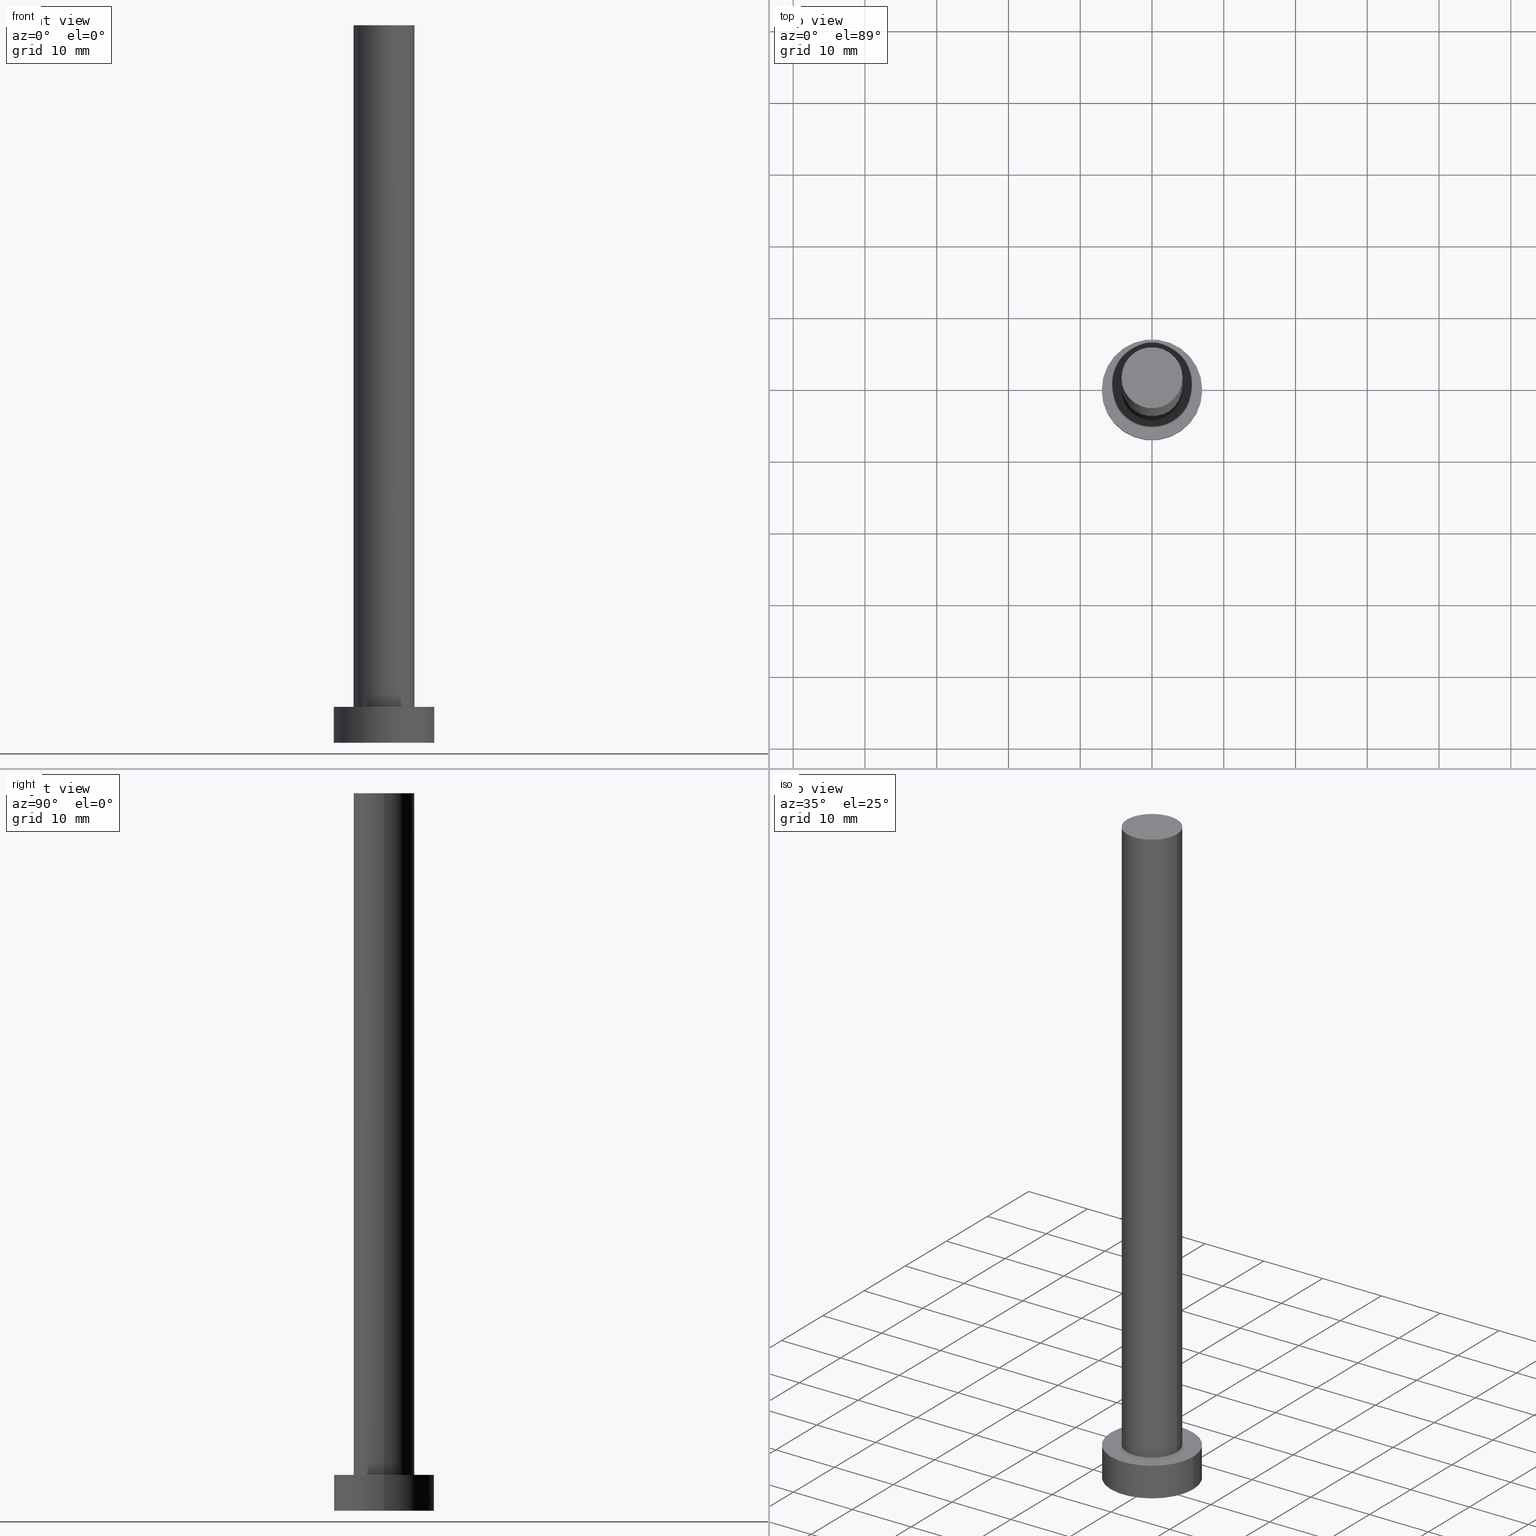
[diagram: canonical four-view strip — front | top / right | iso, engineering-drawing reading convention]
A machine part, canonical four-view strip (front | top / right | iso — engineering-drawing reading convention). The complete STEP part file that produces these views, byte-faithful:
ISO-10303-21;
HEADER;
FILE_DESCRIPTION (( 'STEP AP203' ),
    '1' );
FILE_NAME ('f365.STEP',
    '2023-02-12T11:11:16',
    ( '' ),
    ( '' ),
    'SwSTEP 2.0',
    'SolidWorks 2019',
    '' );
FILE_SCHEMA (( 'CONFIG_CONTROL_DESIGN' ));
ENDSEC;

DATA;
#1 = LINE ( 'NONE', #126, #28 ) ;
#2 = ORIENTED_EDGE ( 'NONE', *, *, #116, .F. ) ;
#3 = AXIS2_PLACEMENT_3D ( 'NONE', #108, #89, #244 ) ;
#4 = APPROVAL_PERSON_ORGANIZATION ( #32, #46, #212 ) ;
#5 = CARTESIAN_POINT ( 'NONE',  ( -4.250000000000000000, 0.000000000000000000, 100.0000000000000000 ) ) ;
#6 = ORIENTED_EDGE ( 'NONE', *, *, #142, .T. ) ;
#7 = PERSON_AND_ORGANIZATION_ROLE ( 'design_owner' ) ;
#8 = DIRECTION ( 'NONE',  ( 0.000000000000000000, 0.000000000000000000, 1.000000000000000000 ) ) ;
#9 = SECURITY_CLASSIFICATION_LEVEL ( 'unclassified' ) ;
#10 = LINE ( 'NONE', #169, #60 ) ;
#11 = APPROVAL_STATUS ( 'not_yet_approved' ) ;
#12 = CARTESIAN_POINT ( 'NONE',  ( 7.000000000000000000, 8.572527594031473190E-16, 0.000000000000000000 ) ) ;
#13 = DATE_AND_TIME ( #74, #94 ) ;
#14 = EDGE_CURVE ( 'NONE', #255, #229, #161, .T. ) ;
#15 = CLOSED_SHELL ( 'NONE', ( #221, #56, #201, #236, #35, #146, #170 ) ) ;
#16 = CIRCLE ( 'NONE', #54, 7.000000000000000000 ) ;
#17 = EDGE_CURVE ( 'NONE', #189, #52, #10, .T. ) ;
#18 = CC_DESIGN_PERSON_AND_ORGANIZATION_ASSIGNMENT ( #69, #7, ( #130 ) ) ;
#19 =( NAMED_UNIT ( * ) SI_UNIT ( $, .STERADIAN. ) SOLID_ANGLE_UNIT ( ) );
#20 = EDGE_LOOP ( 'NONE', ( #218, #133, #178, #80 ) ) ;
#21 = AXIS2_PLACEMENT_3D ( 'NONE', #97, #123, #254 ) ;
#22 = CYLINDRICAL_SURFACE ( 'NONE', #214, 7.000000000000000000 ) ;
#23 = ORIENTED_EDGE ( 'NONE', *, *, #215, .T. ) ;
#24 = DIRECTION ( 'NONE',  ( 0.000000000000000000, 0.000000000000000000, 1.000000000000000000 ) ) ;
#25 = FACE_OUTER_BOUND ( 'NONE', #65, .T. ) ;
#26 = CARTESIAN_POINT ( 'NONE',  ( 0.000000000000000000, 0.000000000000000000, 100.0000000000000000 ) ) ;
#27 = ORIENTED_EDGE ( 'NONE', *, *, #59, .T. ) ;
#28 = VECTOR ( 'NONE', #84, 1000.000000000000000 ) ;
#29 = DIRECTION ( 'NONE',  ( 1.000000000000000000, 0.000000000000000000, 0.000000000000000000 ) ) ;
#30 = PERSON_AND_ORGANIZATION_ROLE ( 'design_supplier' ) ;
#31 = CARTESIAN_POINT ( 'NONE',  ( 0.000000000000000000, 0.000000000000000000, 100.0000000000000000 ) ) ;
#32 = PERSON_AND_ORGANIZATION ( #198, #245 ) ;
#33 = EDGE_LOOP ( 'NONE', ( #175, #2 ) ) ;
#34 = CC_DESIGN_APPROVAL ( #132, ( #231 ) ) ;
#35 = ADVANCED_FACE ( 'NONE', ( #45 ), #230, .F. ) ;
#36 = PERSON_AND_ORGANIZATION_ROLE ( 'creator' ) ;
#37 = CC_DESIGN_APPROVAL ( #143, ( #62 ) ) ;
#38 = VERTEX_POINT ( 'NONE', #12 ) ;
#39 = DIRECTION ( 'NONE',  ( -0.000000000000000000, -0.000000000000000000, -1.000000000000000000 ) ) ;
#40 = ORIENTED_EDGE ( 'NONE', *, *, #116, .T. ) ;
#41 = AXIS2_PLACEMENT_3D ( 'NONE', #239, #200, #64 ) ;
#42 = DIRECTION ( 'NONE',  ( 0.000000000000000000, 0.000000000000000000, 1.000000000000000000 ) ) ;
#43 = CARTESIAN_POINT ( 'NONE',  ( 4.250000000000000000, 5.204748896376250699E-16, 100.0000000000000000 ) ) ;
#44 = DIRECTION ( 'NONE',  ( 1.000000000000000000, 0.000000000000000000, -0.000000000000000000 ) ) ;
#45 = FACE_OUTER_BOUND ( 'NONE', #152, .T. ) ;
#46 = APPROVAL ( #191, 'NEUR�EN�' ) ;
#47 = FACE_OUTER_BOUND ( 'NONE', #207, .T. ) ;
#48 = CARTESIAN_POINT ( 'NONE',  ( 0.000000000000000000, 0.000000000000000000, 5.000000000000000000 ) ) ;
#49 = COORDINATED_UNIVERSAL_TIME_OFFSET ( 1, 0, .AHEAD. ) ;
#50 = DIRECTION ( 'NONE',  ( 1.000000000000000000, 0.000000000000000000, 0.000000000000000000 ) ) ;
#51 = MECHANICAL_CONTEXT ( 'NONE', #95, 'mechanical' ) ;
#52 = VERTEX_POINT ( 'NONE', #209 ) ;
#53 = CARTESIAN_POINT ( 'NONE',  ( 0.000000000000000000, 0.000000000000000000, 5.000000000000000000 ) ) ;
#54 = AXIS2_PLACEMENT_3D ( 'NONE', #216, #183, #102 ) ;
#55 = CC_DESIGN_PERSON_AND_ORGANIZATION_ASSIGNMENT ( #206, #30, ( #62 ) ) ;
#56 = ADVANCED_FACE ( 'NONE', ( #173 ), #150, .T. ) ;
#57 = AXIS2_PLACEMENT_3D ( 'NONE', #203, #241, #225 ) ;
#58 = DIRECTION ( 'NONE',  ( -0.000000000000000000, -0.000000000000000000, -1.000000000000000000 ) ) ;
#59 = EDGE_CURVE ( 'NONE', #101, #52, #224, .T. ) ;
#60 = VECTOR ( 'NONE', #223, 1000.000000000000000 ) ;
#61 = PLANE ( 'NONE',  #68 ) ;
#62 = PRODUCT_DEFINITION_FORMATION_WITH_SPECIFIED_SOURCE ( 'LIBOVOLN�', '', #130, .NOT_KNOWN. ) ;
#63 = CARTESIAN_POINT ( 'NONE',  ( -7.000000000000000000, 0.000000000000000000, 0.000000000000000000 ) ) ;
#64 = DIRECTION ( 'NONE',  ( 1.000000000000000000, 0.000000000000000000, 0.000000000000000000 ) ) ;
#65 = EDGE_LOOP ( 'NONE', ( #70, #85, #164, #6 ) ) ;
#66 = DIRECTION ( 'NONE',  ( 1.000000000000000000, 0.000000000000000000, 0.000000000000000000 ) ) ;
#67 = EDGE_LOOP ( 'NONE', ( #227, #120 ) ) ;
#68 = AXIS2_PLACEMENT_3D ( 'NONE', #199, #163, #168 ) ;
#69 = PERSON_AND_ORGANIZATION ( #198, #245 ) ;
#70 = ORIENTED_EDGE ( 'NONE', *, *, #157, .F. ) ;
#71 = DIRECTION ( 'NONE',  ( -0.000000000000000000, -0.000000000000000000, -1.000000000000000000 ) ) ;
#72 = DATE_AND_TIME ( #172, #195 ) ;
#73 = CIRCLE ( 'NONE', #21, 4.250000000000000000 ) ;
#74 = CALENDAR_DATE ( 2023, 12, 2 ) ;
#75 = VECTOR ( 'NONE', #240, 1000.000000000000000 ) ;
#76 = MANIFOLD_SOLID_BREP ( 'P�idat vysunut�m3', #15 ) ;
#77 = APPLICATION_CONTEXT ( 'configuration controlled 3d designs of mechanical parts and assemblies' ) ;
#78 = ADVANCED_BREP_SHAPE_REPRESENTATION ( 'f365', ( #76, #166 ), #252 ) ;
#79 = FACE_OUTER_BOUND ( 'NONE', #67, .T. ) ;
#80 = ORIENTED_EDGE ( 'NONE', *, *, #103, .F. ) ;
#81 = DIRECTION ( 'NONE',  ( -1.000000000000000000, 0.000000000000000000, 0.000000000000000000 ) ) ;
#82 = PLANE ( 'NONE',  #190 ) ;
#83 = LOCAL_TIME ( 12, 11, 16.00000000000000000, #208 ) ;
#84 = DIRECTION ( 'NONE',  ( -0.000000000000000000, -0.000000000000000000, -1.000000000000000000 ) ) ;
#85 = ORIENTED_EDGE ( 'NONE', *, *, #14, .F. ) ;
#86 = DIRECTION ( 'NONE',  ( 1.000000000000000000, 0.000000000000000000, 0.000000000000000000 ) ) ;
#87 = CIRCLE ( 'NONE', #104, 4.250000000000000000 ) ;
#88 = CALENDAR_DATE ( 2023, 12, 2 ) ;
#89 = DIRECTION ( 'NONE',  ( 0.000000000000000000, 0.000000000000000000, 1.000000000000000000 ) ) ;
#90 = COORDINATED_UNIVERSAL_TIME_OFFSET ( 1, 0, .AHEAD. ) ;
#91 = LINE ( 'NONE', #250, #141 ) ;
#92 = DATE_TIME_ROLE ( 'classification_date' ) ;
#93 = CC_DESIGN_PERSON_AND_ORGANIZATION_ASSIGNMENT ( #114, #193, ( #62 ) ) ;
#94 = LOCAL_TIME ( 12, 11, 16.00000000000000000, #49 ) ;
#95 = APPLICATION_CONTEXT ( 'configuration controlled 3d designs of mechanical parts and assemblies' ) ;
#96 = EDGE_CURVE ( 'NONE', #38, #171, #213, .T. ) ;
#97 = CARTESIAN_POINT ( 'NONE',  ( 0.000000000000000000, 0.000000000000000000, 5.000000000000000000 ) ) ;
#98 = CIRCLE ( 'NONE', #243, 4.250000000000000000 ) ;
#99 = ORIENTED_EDGE ( 'NONE', *, *, #194, .F. ) ;
#100 = EDGE_CURVE ( 'NONE', #125, #189, #98, .T. ) ;
#101 = VERTEX_POINT ( 'NONE', #113 ) ;
#102 = DIRECTION ( 'NONE',  ( 1.000000000000000000, 0.000000000000000000, 0.000000000000000000 ) ) ;
#103 = EDGE_CURVE ( 'NONE', #255, #171, #91, .T. ) ;
#104 = AXIS2_PLACEMENT_3D ( 'NONE', #177, #42, #184 ) ;
#105 = CARTESIAN_POINT ( 'NONE',  ( 0.000000000000000000, 0.000000000000000000, 100.0000000000000000 ) ) ;
#106 = ORIENTED_EDGE ( 'NONE', *, *, #194, .T. ) ;
#107 = APPROVAL_STATUS ( 'not_yet_approved' ) ;
#108 = CARTESIAN_POINT ( 'NONE',  ( 0.000000000000000000, 0.000000000000000000, 0.000000000000000000 ) ) ;
#109 = APPLICATION_PROTOCOL_DEFINITION ( 'international standard', 'config_control_design', 1994, #77 ) ;
#110 = ORIENTED_EDGE ( 'NONE', *, *, #100, .F. ) ;
#111 = CC_DESIGN_PERSON_AND_ORGANIZATION_ASSIGNMENT ( #160, #249, ( #238 ) ) ;
#112 = AXIS2_PLACEMENT_3D ( 'NONE', #105, #124, #220 ) ;
#113 = CARTESIAN_POINT ( 'NONE',  ( -4.250000000000000000, 0.000000000000000000, 5.000000000000000000 ) ) ;
#114 = PERSON_AND_ORGANIZATION ( #198, #245 ) ;
#115 = APPROVAL_ROLE ( '' ) ;
#116 = EDGE_CURVE ( 'NONE', #52, #101, #73, .T. ) ;
#117 = AXIS2_PLACEMENT_3D ( 'NONE', #53, #192, #187 ) ;
#118 = LOCAL_TIME ( 12, 11, 16.00000000000000000, #247 ) ;
#119 = CC_DESIGN_PERSON_AND_ORGANIZATION_ASSIGNMENT ( #226, #36, ( #231 ) ) ;
#120 = ORIENTED_EDGE ( 'NONE', *, *, #139, .T. ) ;
#121 = CARTESIAN_POINT ( 'NONE',  ( 7.000000000000000000, 8.572527594031473190E-16, 5.000000000000000000 ) ) ;
#122 = AXIS2_PLACEMENT_3D ( 'NONE', #26, #39, #81 ) ;
#123 = DIRECTION ( 'NONE',  ( 0.000000000000000000, 0.000000000000000000, 1.000000000000000000 ) ) ;
#124 = DIRECTION ( 'NONE',  ( -0.000000000000000000, -0.000000000000000000, -1.000000000000000000 ) ) ;
#125 = VERTEX_POINT ( 'NONE', #5 ) ;
#126 = CARTESIAN_POINT ( 'NONE',  ( 7.000000000000000000, 8.572527594031473190E-16, 5.000000000000000000 ) ) ;
#127 = ORIENTED_EDGE ( 'NONE', *, *, #17, .F. ) ;
#128 = CC_DESIGN_APPROVAL ( #46, ( #238 ) ) ;
#129 = CARTESIAN_POINT ( 'NONE',  ( 0.000000000000000000, 0.000000000000000000, 0.000000000000000000 ) ) ;
#130 = PRODUCT ( 'f365', 'f365', '', ( #51 ) ) ;
#131 = APPROVAL_DATE_TIME ( #13, #143 ) ;
#132 = APPROVAL ( #11, 'NEUR�EN�' ) ;
#133 = ORIENTED_EDGE ( 'NONE', *, *, #157, .T. ) ;
#134 = UNCERTAINTY_MEASURE_WITH_UNIT (LENGTH_MEASURE( 1.000000000000000082E-05 ), #235, 'distance_accuracy_value', 'NONE');
#135 = CARTESIAN_POINT ( 'NONE',  ( 0.000000000000000000, 0.000000000000000000, 0.000000000000000000 ) ) ;
#136 = DIRECTION ( 'NONE',  ( 0.000000000000000000, 0.000000000000000000, 1.000000000000000000 ) ) ;
#137 = AXIS2_PLACEMENT_3D ( 'NONE', #129, #154, #29 ) ;
#138 = PERSON_AND_ORGANIZATION ( #198, #245 ) ;
#139 = EDGE_CURVE ( 'NONE', #189, #125, #87, .T. ) ;
#140 = DATE_AND_TIME ( #174, #162 ) ;
#141 = VECTOR ( 'NONE', #71, 1000.000000000000000 ) ;
#142 = EDGE_CURVE ( 'NONE', #171, #38, #233, .T. ) ;
#143 = APPROVAL ( #107, 'NEUR�EN�' ) ;
#144 = LINE ( 'NONE', #202, #75 ) ;
#145 = APPROVAL_PERSON_ORGANIZATION ( #138, #132, #115 ) ;
#146 = ADVANCED_FACE ( 'NONE', ( #147 ), #181, .T. ) ;
#147 = FACE_OUTER_BOUND ( 'NONE', #205, .T. ) ;
#148 = CYLINDRICAL_SURFACE ( 'NONE', #122, 4.250000000000000000 ) ;
#149 = PRODUCT_DEFINITION_SHAPE ( 'NONE', 'NONE',  #231 ) ;
#150 = CYLINDRICAL_SURFACE ( 'NONE', #57, 7.000000000000000000 ) ;
#151 = APPROVAL_DATE_TIME ( #140, #132 ) ;
#152 = EDGE_LOOP ( 'NONE', ( #182, #248 ) ) ;
#153 = DATE_AND_TIME ( #176, #118 ) ;
#154 = DIRECTION ( 'NONE',  ( 0.000000000000000000, 0.000000000000000000, 1.000000000000000000 ) ) ;
#155 = APPROVAL_DATE_TIME ( #153, #46 ) ;
#156 = ORIENTED_EDGE ( 'NONE', *, *, #17, .T. ) ;
#157 = EDGE_CURVE ( 'NONE', #229, #38, #1, .T. ) ;
#158 = AXIS2_PLACEMENT_3D ( 'NONE', #48, #136, #50 ) ;
#159 = DESIGN_CONTEXT ( 'detailed design', #77, 'design' ) ;
#160 = PERSON_AND_ORGANIZATION ( #198, #245 ) ;
#161 = CIRCLE ( 'NONE', #117, 7.000000000000000000 ) ;
#162 = LOCAL_TIME ( 12, 11, 16.00000000000000000, #211 ) ;
#163 = DIRECTION ( 'NONE',  ( 0.000000000000000000, 0.000000000000000000, 1.000000000000000000 ) ) ;
#164 = ORIENTED_EDGE ( 'NONE', *, *, #103, .T. ) ;
#165 = CARTESIAN_POINT ( 'NONE',  ( -7.000000000000000000, 0.000000000000000000, 5.000000000000000000 ) ) ;
#166 = AXIS2_PLACEMENT_3D ( 'NONE', #135, #204, #66 ) ;
#167 = CARTESIAN_POINT ( 'NONE',  ( 0.000000000000000000, 0.000000000000000000, 5.000000000000000000 ) ) ;
#168 = DIRECTION ( 'NONE',  ( 1.000000000000000000, 0.000000000000000000, -0.000000000000000000 ) ) ;
#169 = CARTESIAN_POINT ( 'NONE',  ( 4.250000000000000000, 5.204748896376250699E-16, 100.0000000000000000 ) ) ;
#170 = ADVANCED_FACE ( 'NONE', ( #79 ), #61, .T. ) ;
#171 = VERTEX_POINT ( 'NONE', #63 ) ;
#172 = CALENDAR_DATE ( 2023, 12, 2 ) ;
#173 = FACE_OUTER_BOUND ( 'NONE', #20, .T. ) ;
#174 = CALENDAR_DATE ( 2023, 12, 2 ) ;
#175 = ORIENTED_EDGE ( 'NONE', *, *, #59, .F. ) ;
#176 = CALENDAR_DATE ( 2023, 12, 2 ) ;
#177 = CARTESIAN_POINT ( 'NONE',  ( 0.000000000000000000, 0.000000000000000000, 100.0000000000000000 ) ) ;
#178 = ORIENTED_EDGE ( 'NONE', *, *, #96, .T. ) ;
#179 =( NAMED_UNIT ( * ) PLANE_ANGLE_UNIT ( ) SI_UNIT ( $, .RADIAN. ) );
#180 = ORIENTED_EDGE ( 'NONE', *, *, #14, .T. ) ;
#181 = CYLINDRICAL_SURFACE ( 'NONE', #112, 4.250000000000000000 ) ;
#182 = ORIENTED_EDGE ( 'NONE', *, *, #142, .F. ) ;
#183 = DIRECTION ( 'NONE',  ( 0.000000000000000000, 0.000000000000000000, 1.000000000000000000 ) ) ;
#184 = DIRECTION ( 'NONE',  ( 1.000000000000000000, 0.000000000000000000, 0.000000000000000000 ) ) ;
#185 = CC_DESIGN_DATE_AND_TIME_ASSIGNMENT ( #72, #251, ( #231 ) ) ;
#186 = EDGE_LOOP ( 'NONE', ( #180, #23 ) ) ;
#187 = DIRECTION ( 'NONE',  ( 1.000000000000000000, 0.000000000000000000, 0.000000000000000000 ) ) ;
#188 = PERSON_AND_ORGANIZATION ( #198, #245 ) ;
#189 = VERTEX_POINT ( 'NONE', #43 ) ;
#190 = AXIS2_PLACEMENT_3D ( 'NONE', #167, #24, #44 ) ;
#191 = APPROVAL_STATUS ( 'not_yet_approved' ) ;
#192 = DIRECTION ( 'NONE',  ( 0.000000000000000000, 0.000000000000000000, 1.000000000000000000 ) ) ;
#193 = PERSON_AND_ORGANIZATION_ROLE ( 'creator' ) ;
#194 = EDGE_CURVE ( 'NONE', #125, #101, #144, .T. ) ;
#195 = LOCAL_TIME ( 12, 11, 16.00000000000000000, #90 ) ;
#196 = FACE_BOUND ( 'NONE', #33, .T. ) ;
#197 = FACE_OUTER_BOUND ( 'NONE', #186, .T. ) ;
#198 = PERSON ( 'NEUR�EN�', 'NEUR�EN�', 'NEUR�EN�', ('NEUR�EN�'), ('NEUR�EN�'), ('NEUR�EN�') ) ;
#199 = CARTESIAN_POINT ( 'NONE',  ( 0.000000000000000000, 0.000000000000000000, 100.0000000000000000 ) ) ;
#200 = DIRECTION ( 'NONE',  ( 0.000000000000000000, 0.000000000000000000, 1.000000000000000000 ) ) ;
#201 = ADVANCED_FACE ( 'NONE', ( #25 ), #22, .T. ) ;
#202 = CARTESIAN_POINT ( 'NONE',  ( -4.250000000000000000, 0.000000000000000000, 100.0000000000000000 ) ) ;
#203 = CARTESIAN_POINT ( 'NONE',  ( 0.000000000000000000, 0.000000000000000000, 5.000000000000000000 ) ) ;
#204 = DIRECTION ( 'NONE',  ( 0.000000000000000000, 0.000000000000000000, 1.000000000000000000 ) ) ;
#205 = EDGE_LOOP ( 'NONE', ( #127, #110, #106, #27 ) ) ;
#206 = PERSON_AND_ORGANIZATION ( #198, #245 ) ;
#207 = EDGE_LOOP ( 'NONE', ( #237, #156, #40, #99 ) ) ;
#208 = COORDINATED_UNIVERSAL_TIME_OFFSET ( 1, 0, .AHEAD. ) ;
#209 = CARTESIAN_POINT ( 'NONE',  ( 4.250000000000000000, 5.204748896376250699E-16, 5.000000000000000000 ) ) ;
#210 = APPROVAL_PERSON_ORGANIZATION ( #188, #143, #242 ) ;
#211 = COORDINATED_UNIVERSAL_TIME_OFFSET ( 1, 0, .AHEAD. ) ;
#212 = APPROVAL_ROLE ( '' ) ;
#213 = CIRCLE ( 'NONE', #137, 7.000000000000000000 ) ;
#214 = AXIS2_PLACEMENT_3D ( 'NONE', #234, #58, #222 ) ;
#215 = EDGE_CURVE ( 'NONE', #229, #255, #16, .T. ) ;
#216 = CARTESIAN_POINT ( 'NONE',  ( 0.000000000000000000, 0.000000000000000000, 5.000000000000000000 ) ) ;
#217 = CC_DESIGN_DATE_AND_TIME_ASSIGNMENT ( #232, #92, ( #238 ) ) ;
#218 = ORIENTED_EDGE ( 'NONE', *, *, #215, .F. ) ;
#219 = APPLICATION_PROTOCOL_DEFINITION ( 'international standard', 'config_control_design', 1994, #95 ) ;
#220 = DIRECTION ( 'NONE',  ( -1.000000000000000000, 0.000000000000000000, 0.000000000000000000 ) ) ;
#221 = ADVANCED_FACE ( 'NONE', ( #47 ), #148, .T. ) ;
#222 = DIRECTION ( 'NONE',  ( -1.000000000000000000, 0.000000000000000000, 0.000000000000000000 ) ) ;
#223 = DIRECTION ( 'NONE',  ( -0.000000000000000000, -0.000000000000000000, -1.000000000000000000 ) ) ;
#224 = CIRCLE ( 'NONE', #158, 4.250000000000000000 ) ;
#225 = DIRECTION ( 'NONE',  ( -1.000000000000000000, 0.000000000000000000, 0.000000000000000000 ) ) ;
#226 = PERSON_AND_ORGANIZATION ( #198, #245 ) ;
#227 = ORIENTED_EDGE ( 'NONE', *, *, #100, .T. ) ;
#228 = SHAPE_DEFINITION_REPRESENTATION ( #149, #78 ) ;
#229 = VERTEX_POINT ( 'NONE', #121 ) ;
#230 = PLANE ( 'NONE',  #3 ) ;
#231 = PRODUCT_DEFINITION ( 'NEZN�M�', '', #62, #159 ) ;
#232 = DATE_AND_TIME ( #88, #83 ) ;
#233 = CIRCLE ( 'NONE', #41, 7.000000000000000000 ) ;
#234 = CARTESIAN_POINT ( 'NONE',  ( 0.000000000000000000, 0.000000000000000000, 5.000000000000000000 ) ) ;
#235 =( LENGTH_UNIT ( ) NAMED_UNIT ( * ) SI_UNIT ( .MILLI., .METRE. ) );
#236 = ADVANCED_FACE ( 'NONE', ( #196, #197 ), #82, .T. ) ;
#237 = ORIENTED_EDGE ( 'NONE', *, *, #139, .F. ) ;
#238 = SECURITY_CLASSIFICATION ( '', '', #9 ) ;
#239 = CARTESIAN_POINT ( 'NONE',  ( 0.000000000000000000, 0.000000000000000000, 0.000000000000000000 ) ) ;
#240 = DIRECTION ( 'NONE',  ( -0.000000000000000000, -0.000000000000000000, -1.000000000000000000 ) ) ;
#241 = DIRECTION ( 'NONE',  ( -0.000000000000000000, -0.000000000000000000, -1.000000000000000000 ) ) ;
#242 = APPROVAL_ROLE ( '' ) ;
#243 = AXIS2_PLACEMENT_3D ( 'NONE', #31, #8, #86 ) ;
#244 = DIRECTION ( 'NONE',  ( 1.000000000000000000, 0.000000000000000000, -0.000000000000000000 ) ) ;
#245 = ORGANIZATION ( 'NEUR�EN�', 'NEUR�EN�', '' ) ;
#246 = CC_DESIGN_SECURITY_CLASSIFICATION ( #238, ( #62 ) ) ;
#247 = COORDINATED_UNIVERSAL_TIME_OFFSET ( 1, 0, .AHEAD. ) ;
#248 = ORIENTED_EDGE ( 'NONE', *, *, #96, .F. ) ;
#249 = PERSON_AND_ORGANIZATION_ROLE ( 'classification_officer' ) ;
#250 = CARTESIAN_POINT ( 'NONE',  ( -7.000000000000000000, 0.000000000000000000, 5.000000000000000000 ) ) ;
#251 = DATE_TIME_ROLE ( 'creation_date' ) ;
#252 =( GEOMETRIC_REPRESENTATION_CONTEXT ( 3 ) GLOBAL_UNCERTAINTY_ASSIGNED_CONTEXT ( ( #134 ) ) GLOBAL_UNIT_ASSIGNED_CONTEXT ( ( #235, #179, #19 ) ) REPRESENTATION_CONTEXT ( 'NONE', 'WORKASPACE' ) );
#253 = PRODUCT_RELATED_PRODUCT_CATEGORY ( 'detail', '', ( #130 ) ) ;
#254 = DIRECTION ( 'NONE',  ( 1.000000000000000000, 0.000000000000000000, 0.000000000000000000 ) ) ;
#255 = VERTEX_POINT ( 'NONE', #165 ) ;
ENDSEC;
END-ISO-10303-21;
